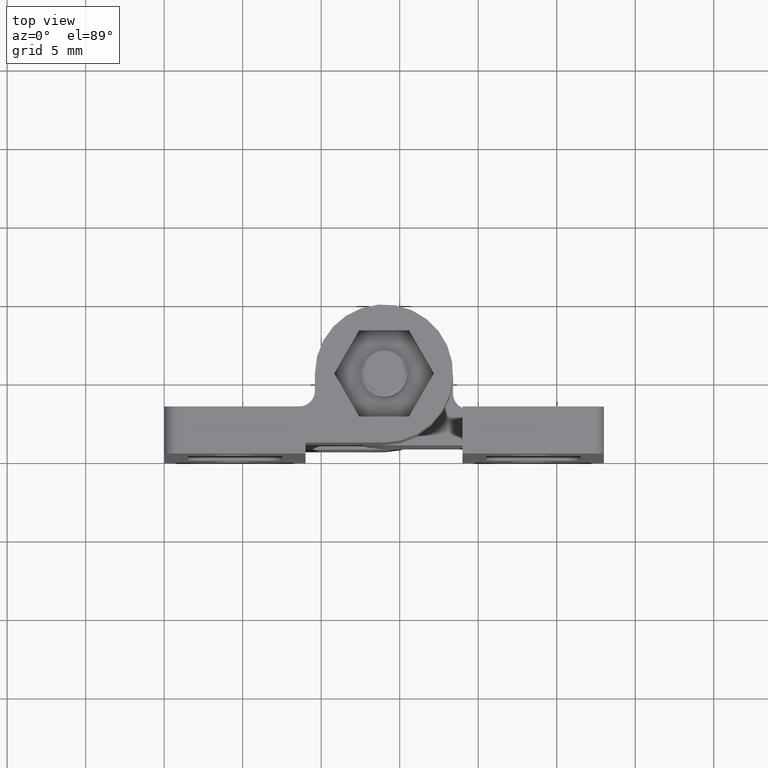
[diagram: clean part render]
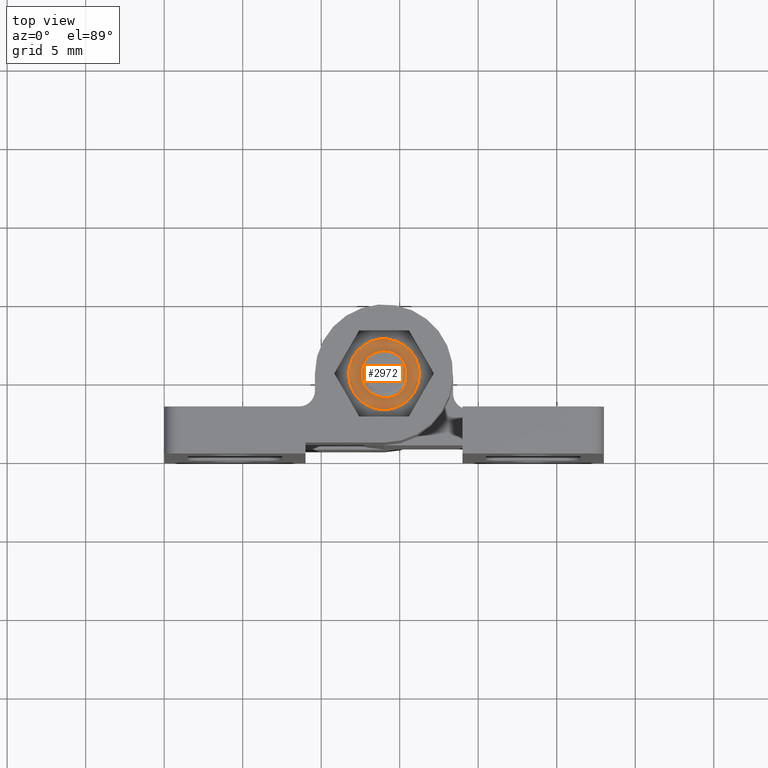
[diagram: same view with one face highlighted and labeled with its STEP entity id]
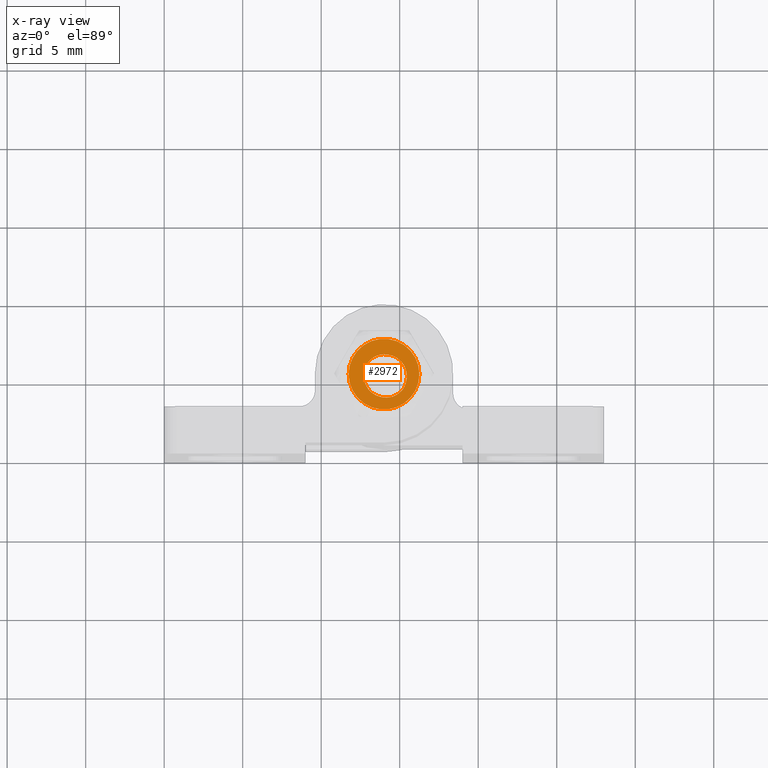
[diagram: x-ray of the same camera — body ghosted, the highlighted face saturated]
A machine part, top view. The second image highlights one B-rep face of the part: STEP entity #2972.
The next image is the same camera in x-ray: the body ghosted, the highlighted face saturated — about 0% of this face is hidden behind the body in this view.
In plain terms, the highlighted planar face has unit normal (0, 0, 1).
Its self-contained STEP definition (entity closure, byte-faithful):
#72=B_SPLINE_CURVE_WITH_KNOTS('',3,(#5606,#5607,#5608,#5609,#5610,#5611,
#5612,#5613,#5614,#5615,#5616,#5617,#5618,#5619,#5620,#5621,#5622,#5623,
#5624,#5625,#5626,#5627,#5628,#5629,#5630,#5631,#5632,#5633,#5634,#5635,
#5636,#5637,#5638,#5639,#5640,#5641,#5642,#5643,#5644,#5645,#5646,#5647,
#5648,#5649,#5650,#5651,#5652,#5653,#5654,#5655,#5656,#5657),
 .UNSPECIFIED.,.F.,.F.,(4,3,3,3,3,3,3,3,3,3,3,3,3,3,3,3,3,4),(0.,0.058285716835498,
0.0610427076964999,0.109224969420001,0.115813098470471,0.118950351404379,
0.148328010188822,0.165172405266269,0.169944028413594,0.173001567336712,
0.206532572353162,0.216725897281169,0.22199696636323,0.226247102078302,
0.253599684750788,0.258170465801301,0.283083170808397,0.28634738033224),
 .UNSPECIFIED.);
#74=B_SPLINE_CURVE_WITH_KNOTS('',3,(#5843,#5844,#5845,#5846,#5847,#5848,
#5849,#5850,#5851,#5852,#5853,#5854,#5855,#5856,#5857,#5858,#5859,#5860,
#5861,#5862,#5863,#5864,#5865,#5866,#5867,#5868,#5869,#5870,#5871,#5872,
#5873,#5874,#5875,#5876,#5877,#5878,#5879,#5880,#5881,#5882,#5883,#5884,
#5885,#5886,#5887,#5888),.UNSPECIFIED.,.F.,.F.,(4,3,3,3,3,3,3,3,3,3,3,3,
3,3,3,4),(0.,0.0438368090742624,0.0499506847110873,0.0529469911912943,0.0979540066133473,
0.101546705139019,0.104477615300727,0.133983285695133,0.150628269989138,
0.155391843476172,0.158502103933471,0.215902457233046,0.244576685903671,
0.248837583914836,0.281206124094452,0.285110039950238),.UNSPECIFIED.);
#321=FACE_BOUND('',#598,.T.);
#378=PLANE('',#3122);
#468=FACE_OUTER_BOUND('',#597,.T.);
#597=EDGE_LOOP('',(#2246));
#598=EDGE_LOOP('',(#2247,#2248,#2249,#2250));
#1014=CIRCLE('',#3112,1.2645);
#1017=CIRCLE('',#3116,1.543);
#1018=CIRCLE('',#3117,2.25290549384713);
#1139=VERTEX_POINT('',#3996);
#1140=VERTEX_POINT('',#4013);
#1156=VERTEX_POINT('',#4754);
#1157=VERTEX_POINT('',#4760);
#1168=VERTEX_POINT('',#5140);
#1573=EDGE_CURVE('',#1140,#1139,#1014,.F.);
#1590=EDGE_CURVE('',#1157,#1156,#1017,.T.);
#1603=EDGE_CURVE('',#1168,#1168,#1018,.T.);
#1616=EDGE_CURVE('',#1156,#1140,#72,.T.);
#1618=EDGE_CURVE('',#1139,#1157,#74,.T.);
#2246=ORIENTED_EDGE('',*,*,#1603,.T.);
#2247=ORIENTED_EDGE('',*,*,#1618,.T.);
#2248=ORIENTED_EDGE('',*,*,#1590,.T.);
#2249=ORIENTED_EDGE('',*,*,#1616,.T.);
#2250=ORIENTED_EDGE('',*,*,#1573,.T.);
#2972=ADVANCED_FACE('',(#468,#321),#378,.T.);
#3112=AXIS2_PLACEMENT_3D('',#4014,#3469,#3470);
#3116=AXIS2_PLACEMENT_3D('',#4761,#3477,#3478);
#3117=AXIS2_PLACEMENT_3D('',#5148,#3479,#3480);
#3122=AXIS2_PLACEMENT_3D('',#5935,#3493,#3494);
#3469=DIRECTION('center_axis',(0.,0.,1.));
#3470=DIRECTION('ref_axis',(1.,0.,0.));
#3477=DIRECTION('center_axis',(0.,0.,-1.));
#3478=DIRECTION('ref_axis',(1.,-1.02907469966573E-14,0.));
#3479=DIRECTION('center_axis',(0.,0.,1.));
#3480=DIRECTION('ref_axis',(1.,0.,0.));
#3493=DIRECTION('center_axis',(0.,0.,1.));
#3494=DIRECTION('ref_axis',(1.,0.,0.));
#3996=CARTESIAN_POINT('',(0.290085218597578,1.23077650934327,2.3));
#4013=CARTESIAN_POINT('',(-1.26017853661085,0.10445240957175,2.29999225603367));
#4014=CARTESIAN_POINT('Origin',(0.,0.,2.3));
#4754=CARTESIAN_POINT('',(0.553777279688891,-1.44020127916218,2.3));
#4760=CARTESIAN_POINT('',(1.19867358222768,-0.971612393534301,2.29999999559223));
#4761=CARTESIAN_POINT('Origin',(0.,0.,2.3));
#5140=CARTESIAN_POINT('',(2.25290549384713,0.,2.3));
#5148=CARTESIAN_POINT('Origin',(0.,0.,2.3));
#5606=CARTESIAN_POINT('Ctrl Pts',(0.553777279688891,-1.44020127916218,2.3));
#5607=CARTESIAN_POINT('Ctrl Pts',(0.366950619012063,-1.4935186397348,2.30000000000001));
#5608=CARTESIAN_POINT('Ctrl Pts',(0.171420833975781,-1.50844496521991,2.3));
#5609=CARTESIAN_POINT('Ctrl Pts',(-0.0219015794151103,-1.4871736590477,
2.3));
#5610=CARTESIAN_POINT('Ctrl Pts',(-0.0310459831538516,-1.48616749836371,
2.3));
#5611=CARTESIAN_POINT('Ctrl Pts',(-0.0401840417222937,-1.48507944376506,
2.3));
#5612=CARTESIAN_POINT('Ctrl Pts',(-0.0493046712151522,-1.48391094497671,
2.3));
#5613=CARTESIAN_POINT('Ctrl Pts',(-0.208700396287773,-1.46348979841425,
2.3));
#5614=CARTESIAN_POINT('Ctrl Pts',(-0.363704909899528,-1.41862234610362,
2.29999999999999));
#5615=CARTESIAN_POINT('Ctrl Pts',(-0.507733147902971,-1.34998968706767,
2.3));
#5616=CARTESIAN_POINT('Ctrl Pts',(-0.527426632287831,-1.34060530371512,
2.3));
#5617=CARTESIAN_POINT('Ctrl Pts',(-0.546912225016942,-1.33077296785222,
2.3));
#5618=CARTESIAN_POINT('Ctrl Pts',(-0.56617004855269,-1.32049113620157,2.3));
#5619=CARTESIAN_POINT('Ctrl Pts',(-0.57534058284631,-1.31559495000595,2.3));
#5620=CARTESIAN_POINT('Ctrl Pts',(-0.584452190177979,-1.3106006652095,2.3));
#5621=CARTESIAN_POINT('Ctrl Pts',(-0.593499280392432,-1.30551068601665,
2.3));
#5622=CARTESIAN_POINT('Ctrl Pts',(-0.678217451005896,-1.25784743568343,
2.3));
#5623=CARTESIAN_POINT('Ctrl Pts',(-0.757413736528329,-1.20176375955018,
2.3));
#5624=CARTESIAN_POINT('Ctrl Pts',(-0.829510031551834,-1.13734284022283,
2.3));
#5625=CARTESIAN_POINT('Ctrl Pts',(-0.870848195559618,-1.10040553952218,
2.3));
#5626=CARTESIAN_POINT('Ctrl Pts',(-0.909845885455183,-1.06071962515675,
2.3));
#5627=CARTESIAN_POINT('Ctrl Pts',(-0.946361795624182,-1.01857894409714,
2.3));
#5628=CARTESIAN_POINT('Ctrl Pts',(-0.956705898894554,-1.00664147479275,
2.3));
#5629=CARTESIAN_POINT('Ctrl Pts',(-0.966850574635784,-0.994506931716554,
2.3));
#5630=CARTESIAN_POINT('Ctrl Pts',(-0.976791941514646,-0.982181836681057,
2.3));
#5631=CARTESIAN_POINT('Ctrl Pts',(-0.983162125253513,-0.974284218483094,
2.3));
#5632=CARTESIAN_POINT('Ctrl Pts',(-0.989448816933066,-0.966308195619964,
2.3));
#5633=CARTESIAN_POINT('Ctrl Pts',(-0.995642172126103,-0.958267375336712,
2.3));
#5634=CARTESIAN_POINT('Ctrl Pts',(-1.06356262359647,-0.870086393169801,
2.3));
#5635=CARTESIAN_POINT('Ctrl Pts',(-1.12060242022952,-0.773796049686554,
2.3));
#5636=CARTESIAN_POINT('Ctrl Pts',(-1.16579415895197,-0.671900378384129,
2.3));
#5637=CARTESIAN_POINT('Ctrl Pts',(-1.17953231194301,-0.6409244000073,2.3));
#5638=CARTESIAN_POINT('Ctrl Pts',(-1.1921700228047,-0.609428724478,2.3));
#5639=CARTESIAN_POINT('Ctrl Pts',(-1.20366502669083,-0.577481816978411,
2.3));
#5640=CARTESIAN_POINT('Ctrl Pts',(-1.20960920682933,-0.560961755312767,
2.3));
#5641=CARTESIAN_POINT('Ctrl Pts',(-1.21524770284779,-0.544321044146046,
2.3));
#5642=CARTESIAN_POINT('Ctrl Pts',(-1.22057387294159,-0.527569293926371,
2.3));
#5643=CARTESIAN_POINT('Ctrl Pts',(-1.22486843736254,-0.514062126634449,
2.3));
#5644=CARTESIAN_POINT('Ctrl Pts',(-1.22896064436352,-0.5004796860496,2.3));
#5645=CARTESIAN_POINT('Ctrl Pts',(-1.23284026207356,-0.486851646466201,
2.3));
#5646=CARTESIAN_POINT('Ctrl Pts',(-1.25780830339402,-0.399145722618398,
2.3));
#5647=CARTESIAN_POINT('Ctrl Pts',(-1.27407454387143,-0.309344551973909,
2.3));
#5648=CARTESIAN_POINT('Ctrl Pts',(-1.28083295614044,-0.218846309600594,
2.3));
#5649=CARTESIAN_POINT('Ctrl Pts',(-1.2819623274726,-0.203723509084914,2.3));
#5650=CARTESIAN_POINT('Ctrl Pts',(-1.28282511741792,-0.18857916322765,2.3));
#5651=CARTESIAN_POINT('Ctrl Pts',(-1.28341604981079,-0.17344324693658,2.3));
#5652=CARTESIAN_POINT('Ctrl Pts',(-1.28663688323511,-0.0909460515110319,
2.3));
#5653=CARTESIAN_POINT('Ctrl Pts',(-1.28182212290543,-0.0085410688657017,
2.3));
#5654=CARTESIAN_POINT('Ctrl Pts',(-1.2682575679525,0.0726645191185323,2.3));
#5655=CARTESIAN_POINT('Ctrl Pts',(-1.26648025997043,0.0833045541372834,
2.3));
#5656=CARTESIAN_POINT('Ctrl Pts',(-1.26455226654239,0.0939238085060328,
2.3));
#5657=CARTESIAN_POINT('Ctrl Pts',(-1.26247510941112,0.104519820313764,2.3));
#5843=CARTESIAN_POINT('Ctrl Pts',(0.290085218597578,1.23077650934327,2.3));
#5844=CARTESIAN_POINT('Ctrl Pts',(0.435105831901833,1.21286382472206,2.29999999999999));
#5845=CARTESIAN_POINT('Ctrl Pts',(0.574991087784793,1.1682735865599,2.3));
#5846=CARTESIAN_POINT('Ctrl Pts',(0.70525165583226,1.10218054126583,2.3));
#5847=CARTESIAN_POINT('Ctrl Pts',(0.723418966141623,1.09296261076586,2.3));
#5848=CARTESIAN_POINT('Ctrl Pts',(0.74139885605137,1.0833213973806,2.3));
#5849=CARTESIAN_POINT('Ctrl Pts',(0.759178434169179,1.07326631803031,2.3));
#5850=CARTESIAN_POINT('Ctrl Pts',(0.767891903054429,1.0683384946322,2.3));
#5851=CARTESIAN_POINT('Ctrl Pts',(0.776549479842858,1.06331562030805,2.3));
#5852=CARTESIAN_POINT('Ctrl Pts',(0.785146859522244,1.05820112438177,2.3));
#5853=CARTESIAN_POINT('Ctrl Pts',(0.914286652923057,0.981377141738248,2.3));
#5854=CARTESIAN_POINT('Ctrl Pts',(1.03012933392877,0.883987165441163,2.3));
#5855=CARTESIAN_POINT('Ctrl Pts',(1.12785982471324,0.770416862174565,2.3));
#5856=CARTESIAN_POINT('Ctrl Pts',(1.13566119049726,0.761351078601057,2.3));
#5857=CARTESIAN_POINT('Ctrl Pts',(1.14334648043171,0.752180868376579,2.3));
#5858=CARTESIAN_POINT('Ctrl Pts',(1.15091281981726,0.742907817550952,2.3));
#5859=CARTESIAN_POINT('Ctrl Pts',(1.15708541148717,0.735342897004278,2.3));
#5860=CARTESIAN_POINT('Ctrl Pts',(1.16317746039961,0.727711088595659,2.3));
#5861=CARTESIAN_POINT('Ctrl Pts',(1.16918057446049,0.720022524738674,2.3));
#5862=CARTESIAN_POINT('Ctrl Pts',(1.22961432883974,0.642621233517146,2.3));
#5863=CARTESIAN_POINT('Ctrl Pts',(1.28125986695485,0.559251523760361,2.3));
#5864=CARTESIAN_POINT('Ctrl Pts',(1.32281492329948,0.471047653679115,2.3));
#5865=CARTESIAN_POINT('Ctrl Pts',(1.3462573074564,0.421289352561114,2.3));
#5866=CARTESIAN_POINT('Ctrl Pts',(1.36648457212715,0.369985219046794,2.3));
#5867=CARTESIAN_POINT('Ctrl Pts',(1.38356187195084,0.317432357425686,2.3));
#5868=CARTESIAN_POINT('Ctrl Pts',(1.38844916840203,0.302392426244961,2.3));
#5869=CARTESIAN_POINT('Ctrl Pts',(1.39307818888969,0.287250060957118,2.3));
#5870=CARTESIAN_POINT('Ctrl Pts',(1.397449770255,0.272011890704875,2.3));
#5871=CARTESIAN_POINT('Ctrl Pts',(1.40030408890746,0.262062494835127,2.3));
#5872=CARTESIAN_POINT('Ctrl Pts',(1.40304859241046,0.252072050610994,2.3));
#5873=CARTESIAN_POINT('Ctrl Pts',(1.4056799000976,0.242057147243817,2.3));
#5874=CARTESIAN_POINT('Ctrl Pts',(1.45424110355802,0.0572305067005988,2.3));
#5875=CARTESIAN_POINT('Ctrl Pts',(1.46504296185274,-0.137231522434072,2.29999999999999));
#5876=CARTESIAN_POINT('Ctrl Pts',(1.44049181809199,-0.32842893171534,2.3));
#5877=CARTESIAN_POINT('Ctrl Pts',(1.42822734462007,-0.423941205069356,2.3));
#5878=CARTESIAN_POINT('Ctrl Pts',(1.40715511684801,-0.518060735612322,2.3));
#5879=CARTESIAN_POINT('Ctrl Pts',(1.37746508945575,-0.609358230446454,2.3));
#5880=CARTESIAN_POINT('Ctrl Pts',(1.37305324702678,-0.62292474407902,2.3));
#5881=CARTESIAN_POINT('Ctrl Pts',(1.36844996620204,-0.636430481176754,2.3));
#5882=CARTESIAN_POINT('Ctrl Pts',(1.36365693939579,-0.649865955268719,2.3));
#5883=CARTESIAN_POINT('Ctrl Pts',(1.32724600434084,-0.751930515799937,2.3));
#5884=CARTESIAN_POINT('Ctrl Pts',(1.28010006490831,-0.849467641959845,2.3));
#5885=CARTESIAN_POINT('Ctrl Pts',(1.22237723372439,-0.940465287801756,2.3));
#5886=CARTESIAN_POINT('Ctrl Pts',(1.21541537895277,-0.951440362688364,2.3));
#5887=CARTESIAN_POINT('Ctrl Pts',(1.20829905560287,-0.962320168759609,2.3));
#5888=CARTESIAN_POINT('Ctrl Pts',(1.20103137263691,-0.973103613542011,2.3));
#5935=CARTESIAN_POINT('Origin',(-5.55111512312578E-16,-5.55111512312578E-16,
2.3));